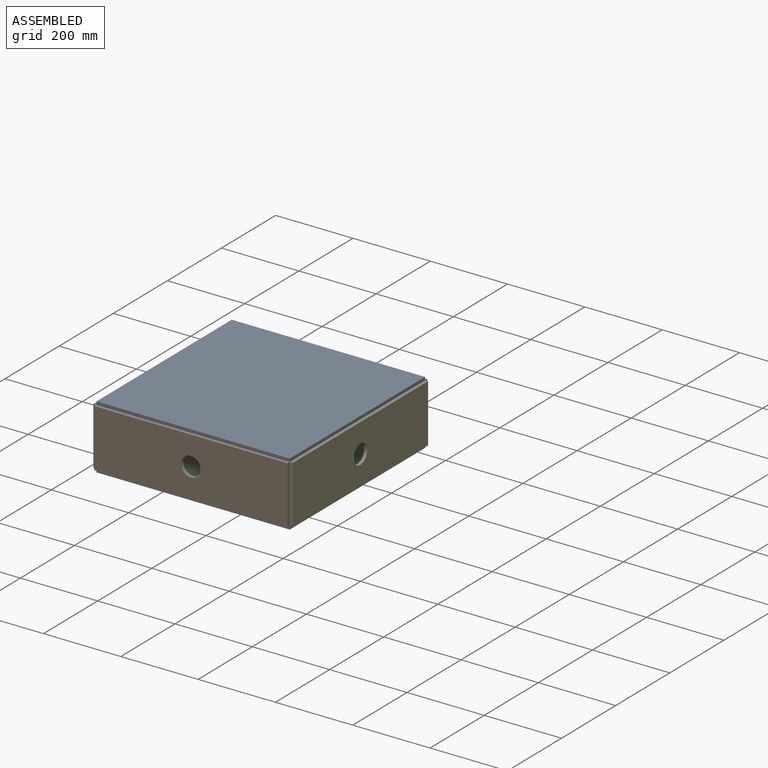
[diagram: assembled view]
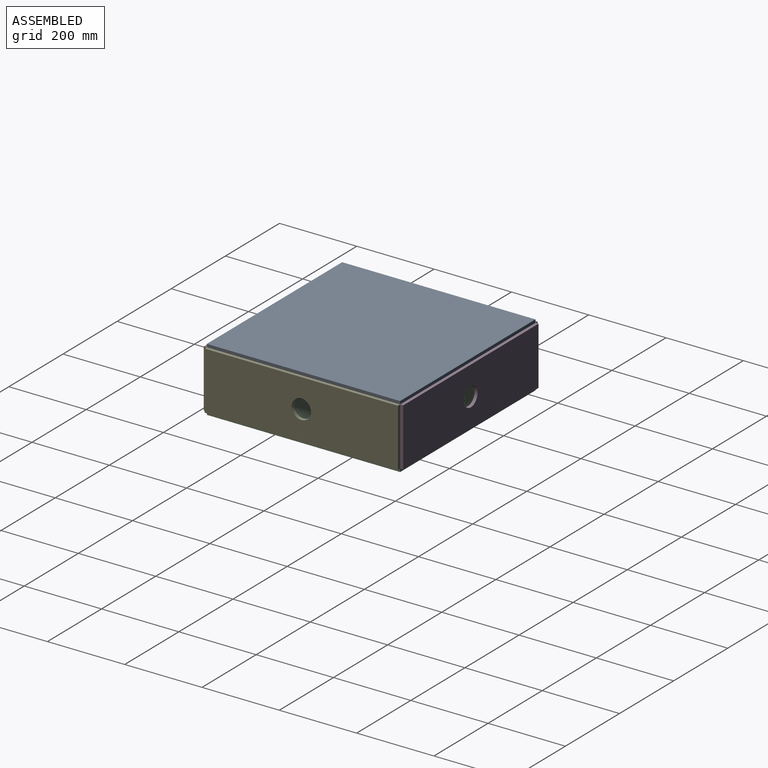
[diagram: assembled view, second angle]
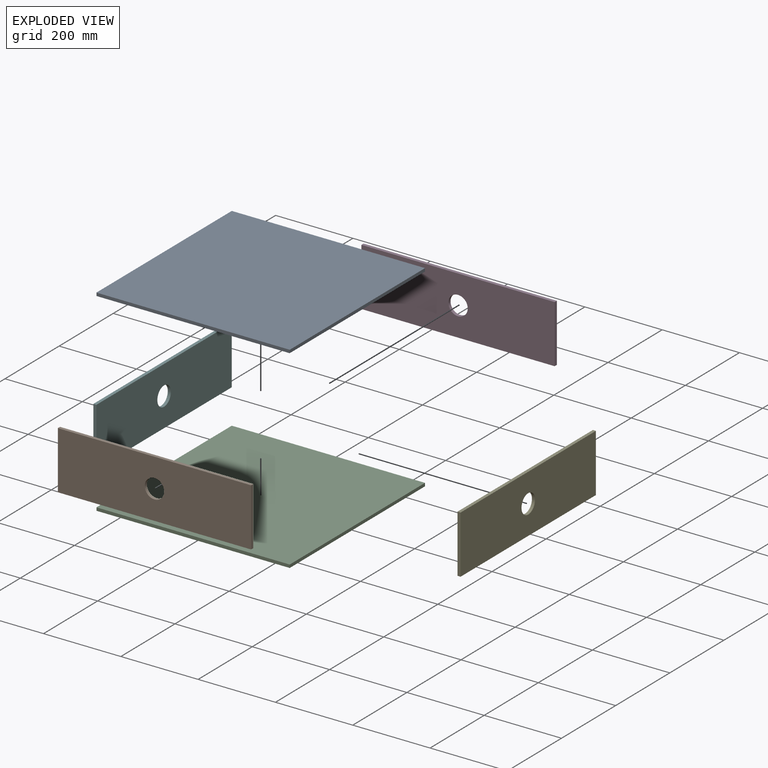
[diagram: exploded view]
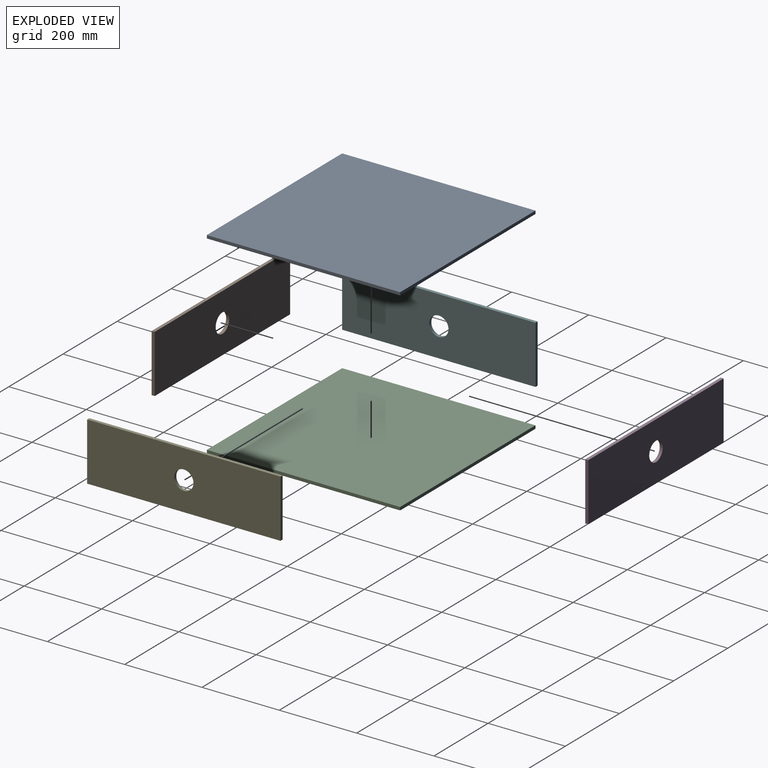
[diagram: exploded view, second angle]
ASSEMBLY  parts=6 mates=5
PART A: 6 faces, bbox 500x500x8 mm
  f0: plane 500x8mm, normal (0,-1,0), area 4000mm2, adj f1,f3,f4,f5
  f1: plane 500x8mm, normal (1,0,0), area 4000mm2, adj f0,f2,f4,f5
  f2: plane 500x8mm, normal (0,1,0), area 4000mm2, adj f1,f3,f4,f5
  f3: plane 500x8mm, normal (-1,0,0), area 4000mm2, adj f0,f2,f4,f5
  f4: plane 500x500mm, normal (0,0,1), area 250000mm2, adj f0,f1,f2,f3
  f5: plane 500x500mm, normal (0,0,-1), area 250000mm2, adj f0,f1,f2,f3
PART B: 7 faces, bbox 500x8x150 mm
  f0: plane 500x8mm, normal (0,0,-1), area 4000mm2, adj f1,f4,f5,f6
  f1: plane 150x8mm, normal (1,0,0), area 1200mm2, adj f0,f2,f5,f6
  f2: plane 500x8mm, normal (0,0,1), area 4000mm2, adj f1,f4,f5,f6
  f3: cylinder r=25mm len=50mm, axis (0,1,0), area 1256.6mm2, adj f5,f6
  f4: plane 150x8mm, normal (-1,0,0), area 1200mm2, adj f0,f2,f5,f6
  f5: plane 500x150mm, normal (0,-1,0), area 73036.5mm2, adj f0,f1,f2,f3,f4
  f6: plane 500x150mm, normal (0,1,0), area 73036.5mm2, adj f0,f1,f2,f3,f4
PART C: same geometry as A
PART D: same geometry as B
PART E: same geometry as B
PART F: same geometry as B
PLACE A rot(axis=(0,0.1,-1),0deg) t=(2.45,-0.91,150.52)mm
PLACE B t=(2.45,-250.91,75.52)mm
PLACE C t=(2.45,-0.91,-7.48)mm
PLACE D t=(2.45,257.09,75.52)mm
PLACE E rot(axis=(0,0,1),90deg) t=(252.45,-0.91,75.52)mm
PLACE F rot(axis=(0,0,1),90deg) t=(-255.55,-0.91,75.52)mm
MATE fastened F.f5 <-> C.f3  axis (1,0,0) through (-247.55,-0.91,0.52)mm
MATE fastened A.f5 <-> F.f2  axis (0,0,-1) through (-247.55,-0.91,150.52)mm
MATE fastened E.f6 <-> C.f1  axis (-1,0,0) through (252.45,-0.91,0.52)mm
MATE fastened D.f5 <-> C.f2  axis (0,-1,0) through (2.45,249.09,0.52)mm
MATE fastened B.f6 <-> C.f0  axis (0,1,0) through (2.45,-250.91,0.52)mm
